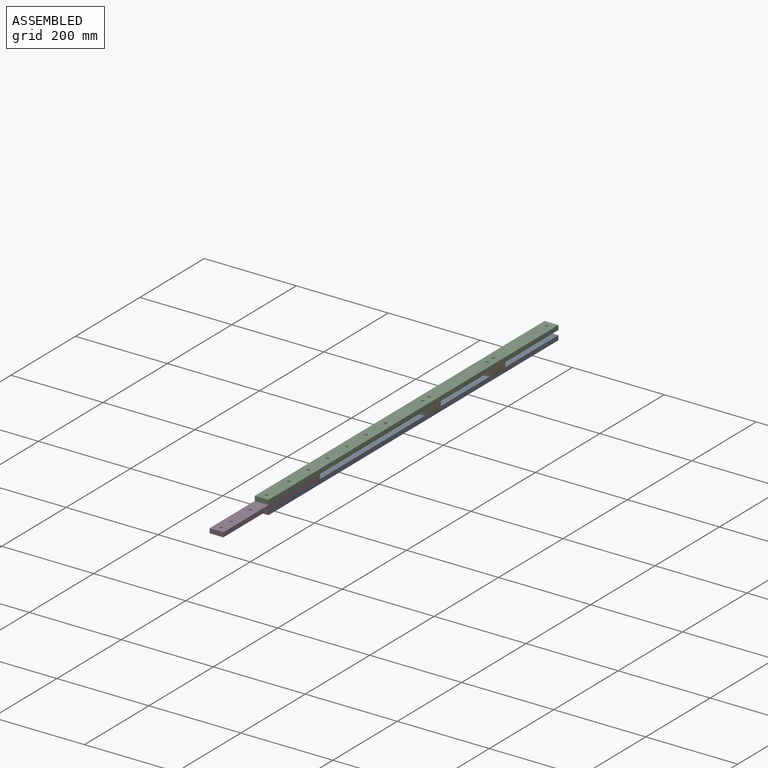
[diagram: assembled view]
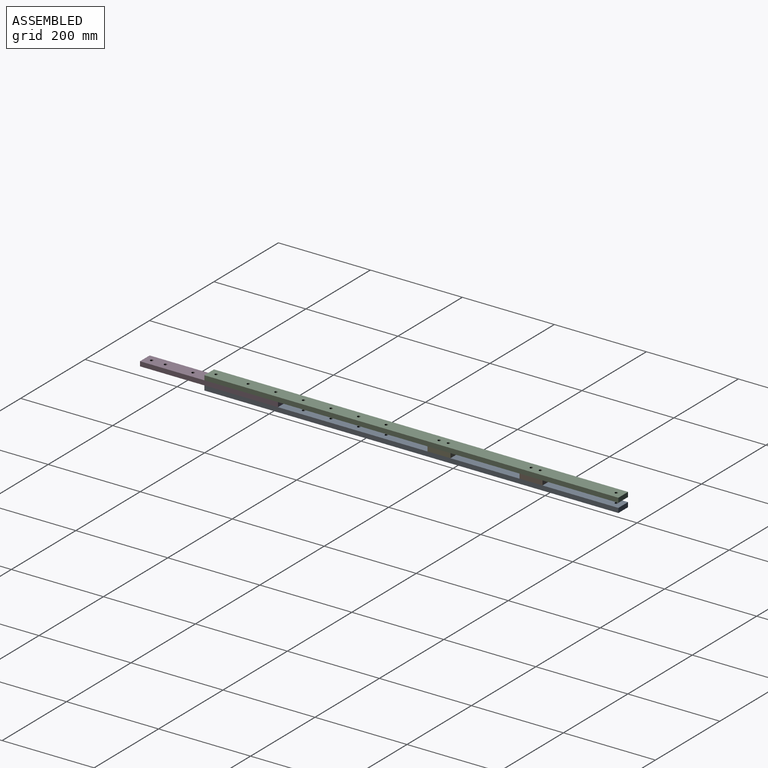
[diagram: assembled view, second angle]
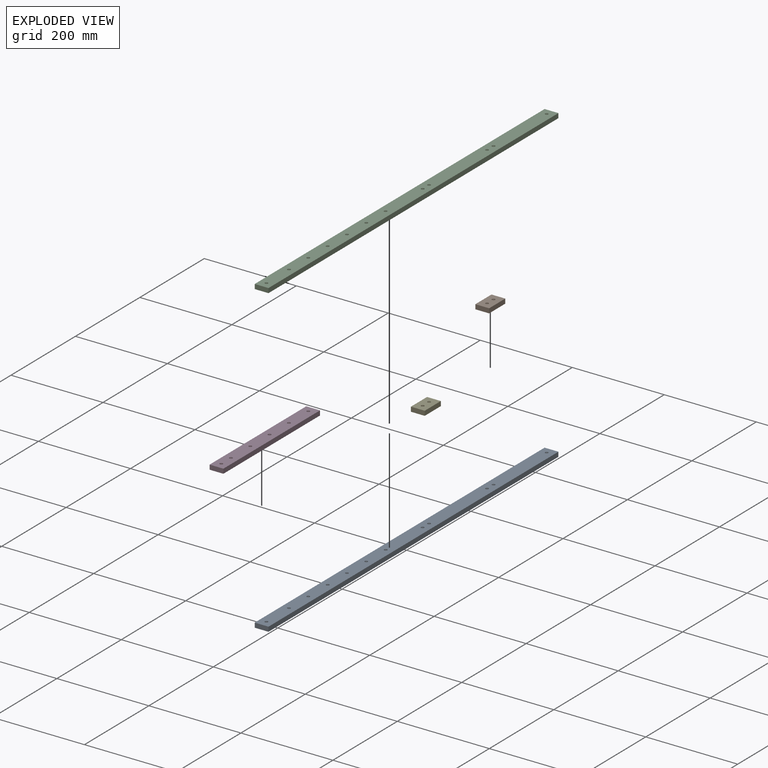
[diagram: exploded view]
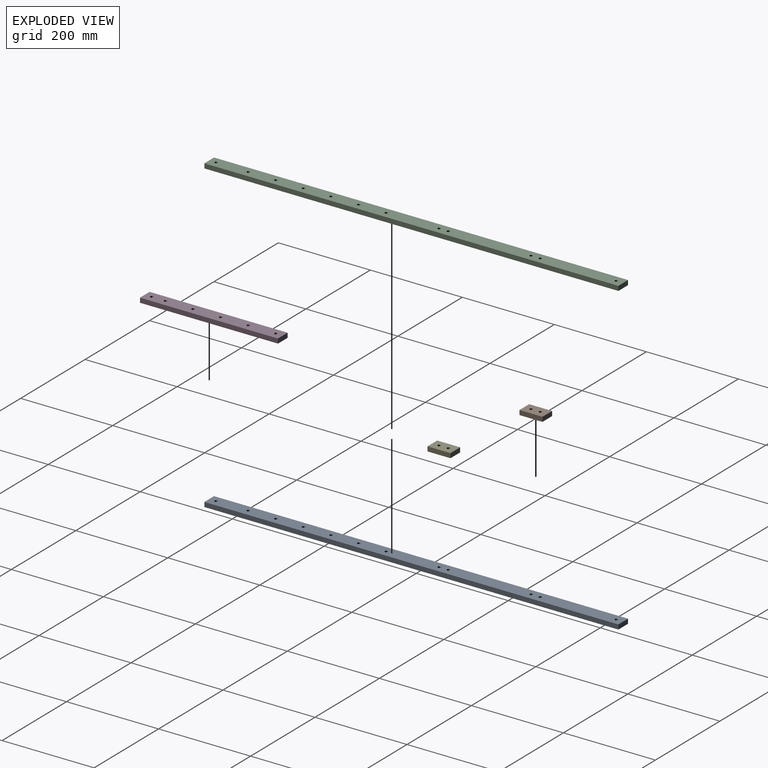
[diagram: exploded view, second angle]
ASSEMBLY  parts=5 mates=5
PART A: 18 faces, bbox 30x900x10 mm
  f0: plane 900x10mm, normal (1,0,0), area 9000mm2, adj f1,f3,f4,f5
  f1: plane 30x10mm, normal (0,1,0), area 300mm2, adj f0,f2,f4,f5
  f2: plane 900x10mm, normal (-1,0,0), area 9000mm2, adj f1,f3,f4,f5
  f3: plane 30x10mm, normal (0,-1,0), area 300mm2, adj f0,f2,f4,f5
  f4: plane 900x30mm, normal (0,0,1), area 26589.5mm2, adj f0,f1,f2,f3,f6,f7,f8,f9
  f5: plane 900x30mm, normal (0,0,-1), area 26589.5mm2, adj f0,f1,f2,f3,f6,f7,f8,f9
  f6: cylinder r=3.3mm len=10mm, axis (0,0,1), area 207.3mm2, adj f4,f5
  f7: cylinder r=3.3mm len=10mm, axis (0,0,1), area 207.3mm2, adj f4,f5
  f8: cylinder r=3.3mm len=10mm, axis (0,0,1), area 207.3mm2, adj f4,f5
  f9: cylinder r=3.3mm len=10mm, axis (0,0,1), area 207.3mm2, adj f4,f5
  f10: cylinder r=3.3mm len=10mm, axis (0,0,1), area 207.3mm2, adj f4,f5
  f11: cylinder r=3.3mm len=10mm, axis (0,0,1), area 207.3mm2, adj f4,f5
  f12: cylinder r=3.3mm len=10mm, axis (0,0,1), area 207.3mm2, adj f4,f5
  f13: cylinder r=3.3mm len=10mm, axis (0,0,1), area 207.3mm2, adj f4,f5
  f14: cylinder r=3.3mm len=10mm, axis (0,0,1), area 207.3mm2, adj f4,f5
  f15: cylinder r=3.3mm len=10mm, axis (0,0,1), area 207.3mm2, adj f4,f5
  f16: cylinder r=3.3mm len=10mm, axis (0,0,1), area 207.3mm2, adj f4,f5
  f17: cylinder r=3.3mm len=10mm, axis (0,0,1), area 207.3mm2, adj f4,f5
PART B: 8 faces, bbox 30x50x10 mm
  f0: plane 30x10mm, normal (0,1,0), area 300mm2, adj f1,f3,f4,f5
  f1: plane 50x10mm, normal (-1,0,0), area 500mm2, adj f0,f2,f4,f5
  f2: plane 30x10mm, normal (0,-1,0), area 300mm2, adj f1,f3,f4,f5
  f3: plane 50x10mm, normal (1,0,0), area 500mm2, adj f0,f2,f4,f5
  f4: plane 50x30mm, normal (0,0,1), area 1431.6mm2, adj f0,f1,f2,f3,f6,f7
  f5: plane 50x30mm, normal (0,0,-1), area 1431.6mm2, adj f0,f1,f2,f3,f6,f7
  f6: cylinder r=3.3mm len=10mm, axis (0,0,1), area 207.3mm2, adj f4,f5
  f7: cylinder r=3.3mm len=10mm, axis (0,0,1), area 207.3mm2, adj f4,f5
PART C: same geometry as A
PART D: 12 faces, bbox 30x300x10 mm
  f0: plane 30x10mm, normal (0,1,0), area 300mm2, adj f1,f3,f4,f5
  f1: plane 300x10mm, normal (-1,0,0), area 3000mm2, adj f0,f2,f4,f5
  f2: plane 30x10mm, normal (0,-1,0), area 300mm2, adj f1,f3,f4,f5
  f3: plane 300x10mm, normal (1,0,0), area 3000mm2, adj f0,f2,f4,f5
  f4: plane 300x30mm, normal (0,0,1), area 8794.7mm2, adj f0,f1,f2,f3,f6,f7,f8,f9
  f5: plane 300x30mm, normal (0,0,-1), area 8794.7mm2, adj f0,f1,f2,f3,f6,f7,f8,f9
  f6: cylinder r=3.3mm len=10mm, axis (0,0,1), area 207.3mm2, adj f4,f5
  f7: cylinder r=3.3mm len=10mm, axis (0,0,1), area 207.3mm2, adj f4,f5
  f8: cylinder r=3.3mm len=10mm, axis (0,0,1), area 207.3mm2, adj f4,f5
  f9: cylinder r=3.3mm len=10mm, axis (0,0,1), area 207.3mm2, adj f4,f5
  f10: cylinder r=3.3mm len=10mm, axis (0,0,1), area 207.3mm2, adj f4,f5
  f11: cylinder r=3.3mm len=10mm, axis (0,0,1), area 207.3mm2, adj f4,f5
PART E: same geometry as B
PLACE A t=(0,0,223.29)mm
PLACE B t=(48.47,235,233.29)mm
PLACE C rot(axis=(0,1,0),180deg) t=(0,0,253.29)mm fixed
PLACE D t=(-47.57,-552.73,233.29)mm
PLACE E rot(axis=(0,0,-1),180deg) t=(-48.47,85,233.29)mm
MATE fastened D.f11 <-> A.f15  axis (0,0,-1) through (0,-305,233.29)mm
MATE fastened E.f6 <-> A.f10  axis (0,0,-1) through (0,50,233.29)mm
MATE fastened B.f6 <-> A.f7  axis (0,0,-1) through (0,270,233.29)mm
MATE fastened E.f7 <-> C.f9  axis (0,0,1) through (0,70,243.29)mm
MATE fastened B.f6 <-> C.f7  axis (0,0,1) through (0,270,243.29)mm
